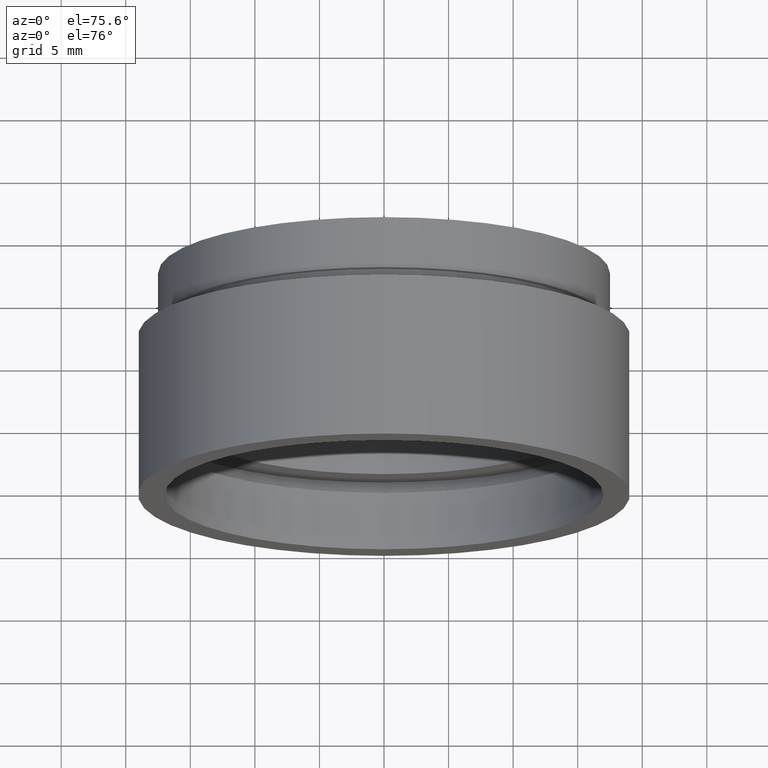
[diagram: clean part render]
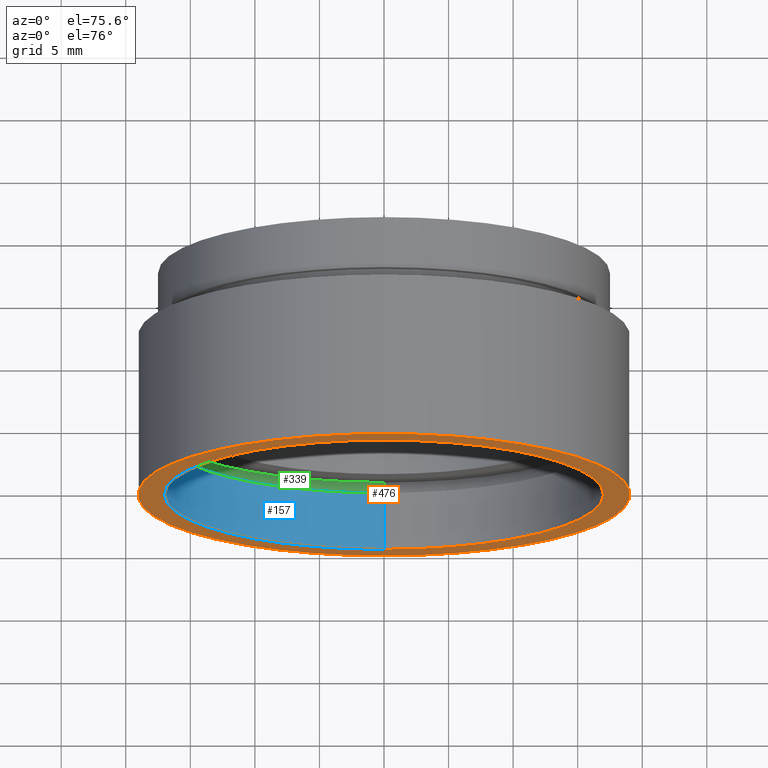
[diagram: same view with three faces highlighted in distinct colors, each labeled with its STEP entity id]
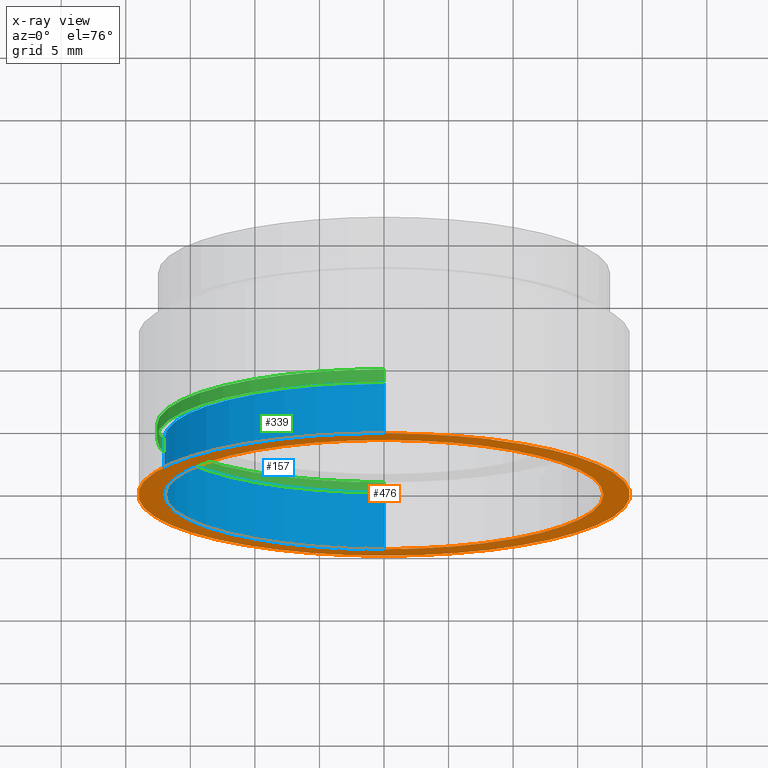
[diagram: x-ray of the same camera — body ghosted, the three highlighted faces saturated]
A machine part, auxiliary view with three faces highlighted in distinct colors.
The next image is the same camera in x-ray (body ghosted, the three faces saturated) — at least one of them is partly hidden behind the body in this view.
Their STEP definitions:

[orange] entity #476 — the highlighted planar face has unit normal (-0, 1, 0).
#2 = VERTEX_POINT ( 'NONE', #510 ) ;
#12 = CARTESIAN_POINT ( 'NONE',  ( 0.0000000000000000000, -2.775557561562891400E-014, 0.0000000000000000000 ) ) ;
#18 = DIRECTION ( 'NONE',  ( -0.0000000000000000000, 1.000000000000000000, -0.0000000000000000000 ) ) ;
#24 = AXIS2_PLACEMENT_3D ( 'NONE', #12, #18, #352 ) ;
#65 = DIRECTION ( 'NONE',  ( -0.0000000000000000000, 1.000000000000000000, -0.0000000000000000000 ) ) ;
#66 = AXIS2_PLACEMENT_3D ( 'NONE', #71, #65, #309 ) ;
#71 = CARTESIAN_POINT ( 'NONE',  ( 0.0000000000000000000, -2.775557561562891400E-014, 0.0000000000000000000 ) ) ;
#97 = EDGE_LOOP ( 'NONE', ( #342, #393 ) ) ;
#114 = CARTESIAN_POINT ( 'NONE',  ( 2.332952152375710400E-015, -2.775557561562891400E-014, -19.05000000000002200 ) ) ;
#130 = VERTEX_POINT ( 'NONE', #114 ) ;
#137 = EDGE_CURVE ( 'NONE', #130, #201, #321, .T. ) ;
#201 = VERTEX_POINT ( 'NONE', #229 ) ;
#202 = DIRECTION ( 'NONE',  ( 0.0000000000000000000, 0.0000000000000000000, 1.000000000000000000 ) ) ;
#229 = CARTESIAN_POINT ( 'NONE',  ( 0.0000000000000000000, -2.775557561562891400E-014, 19.05000000000002200 ) ) ;
#242 = VERTEX_POINT ( 'NONE', #279 ) ;
#244 = CARTESIAN_POINT ( 'NONE',  ( 0.0000000000000000000, -2.775557561562891400E-014, 0.0000000000000000000 ) ) ;
#266 = CIRCLE ( 'NONE', #24, 19.05000000000002200 ) ;
#279 = CARTESIAN_POINT ( 'NONE',  ( 0.0000000000000000000, -2.775557561562891400E-014, 17.00000000000002100 ) ) ;
#288 = DIRECTION ( 'NONE',  ( 0.0000000000000000000, 0.0000000000000000000, 1.000000000000000000 ) ) ;
#298 = EDGE_CURVE ( 'NONE', #2, #242, #512, .T. ) ;
#309 = DIRECTION ( 'NONE',  ( 0.0000000000000000000, 0.0000000000000000000, 1.000000000000000000 ) ) ;
#321 = CIRCLE ( 'NONE', #66, 19.05000000000002200 ) ;
#342 = ORIENTED_EDGE ( 'NONE', *, *, #558, .F. ) ;
#345 = CARTESIAN_POINT ( 'NONE',  ( 0.0000000000000000000, -2.775557561562891400E-014, 0.0000000000000000000 ) ) ;
#352 = DIRECTION ( 'NONE',  ( 0.0000000000000000000, 0.0000000000000000000, 1.000000000000000000 ) ) ;
#373 = CIRCLE ( 'NONE', #417, 17.00000000000002100 ) ;
#393 = ORIENTED_EDGE ( 'NONE', *, *, #137, .F. ) ;
#399 = FACE_OUTER_BOUND ( 'NONE', #97, .T. ) ;
#417 = AXIS2_PLACEMENT_3D ( 'NONE', #345, #574, #202 ) ;
#427 = EDGE_LOOP ( 'NONE', ( #586, #524 ) ) ;
#468 = AXIS2_PLACEMENT_3D ( 'NONE', #480, #527, #577 ) ;
#472 = DIRECTION ( 'NONE',  ( -0.0000000000000000000, 1.000000000000000000, -0.0000000000000000000 ) ) ;
#474 = EDGE_CURVE ( 'NONE', #242, #2, #373, .T. ) ;
#476 = ADVANCED_FACE ( 'NONE', ( #399, #519 ), #520, .F. ) ;
#480 = CARTESIAN_POINT ( 'NONE',  ( 17.00000000000002100, -1.493598162583808000E-014, 0.0000000000000000000 ) ) ;
#505 = AXIS2_PLACEMENT_3D ( 'NONE', #244, #472, #288 ) ;
#510 = CARTESIAN_POINT ( 'NONE',  ( 2.081899558550503000E-015, -2.775557561562891400E-014, -17.00000000000002100 ) ) ;
#512 = CIRCLE ( 'NONE', #505, 17.00000000000002100 ) ;
#519 = FACE_BOUND ( 'NONE', #427, .T. ) ;
#520 = PLANE ( 'NONE',  #468 ) ;
#524 = ORIENTED_EDGE ( 'NONE', *, *, #298, .T. ) ;
#527 = DIRECTION ( 'NONE',  ( -0.0000000000000000000, 1.000000000000000000, 0.0000000000000000000 ) ) ;
#558 = EDGE_CURVE ( 'NONE', #201, #130, #266, .T. ) ;
#574 = DIRECTION ( 'NONE',  ( -0.0000000000000000000, 1.000000000000000000, -0.0000000000000000000 ) ) ;
#577 = DIRECTION ( 'NONE',  ( 0.0000000000000000000, 0.0000000000000000000, 1.000000000000000000 ) ) ;
#586 = ORIENTED_EDGE ( 'NONE', *, *, #474, .T. ) ;

[blue] entity #157 — the highlighted cylindrical surface (partial cylindrical patch) has radius 17 mm, axis along (-0, 1, -0).
#2 = VERTEX_POINT ( 'NONE', #510 ) ;
#61 = CARTESIAN_POINT ( 'NONE',  ( 2.081899558550503400E-015, 4.499999999999976000, -17.00000000000002500 ) ) ;
#72 = DIRECTION ( 'NONE',  ( -0.0000000000000000000, 1.000000000000000000, -0.0000000000000000000 ) ) ;
#85 = ORIENTED_EDGE ( 'NONE', *, *, #298, .F. ) ;
#101 = VERTEX_POINT ( 'NONE', #542 ) ;
#103 = CARTESIAN_POINT ( 'NONE',  ( 0.0000000000000000000, 4.499999999999976000, 0.0000000000000000000 ) ) ;
#111 = ORIENTED_EDGE ( 'NONE', *, *, #368, .T. ) ;
#157 = ADVANCED_FACE ( 'NONE', ( #619 ), #582, .F. ) ;
#184 = CARTESIAN_POINT ( 'NONE',  ( 0.0000000000000000000, 161.3761669434274500, 17.00000000000002100 ) ) ;
#193 = ORIENTED_EDGE ( 'NONE', *, *, #206, .T. ) ;
#206 = EDGE_CURVE ( 'NONE', #2, #439, #458, .T. ) ;
#218 = ORIENTED_EDGE ( 'NONE', *, *, #219, .F. ) ;
#219 = EDGE_CURVE ( 'NONE', #242, #101, #360, .T. ) ;
#224 = AXIS2_PLACEMENT_3D ( 'NONE', #103, #620, #523 ) ;
#242 = VERTEX_POINT ( 'NONE', #279 ) ;
#244 = CARTESIAN_POINT ( 'NONE',  ( 0.0000000000000000000, -2.775557561562891400E-014, 0.0000000000000000000 ) ) ;
#261 = CARTESIAN_POINT ( 'NONE',  ( 0.0000000000000000000, 161.3761669434274500, 0.0000000000000000000 ) ) ;
#279 = CARTESIAN_POINT ( 'NONE',  ( 0.0000000000000000000, -2.775557561562891400E-014, 17.00000000000002100 ) ) ;
#288 = DIRECTION ( 'NONE',  ( 0.0000000000000000000, 0.0000000000000000000, 1.000000000000000000 ) ) ;
#291 = VECTOR ( 'NONE', #469, 1000.000000000000000 ) ;
#298 = EDGE_CURVE ( 'NONE', #2, #242, #512, .T. ) ;
#329 = CARTESIAN_POINT ( 'NONE',  ( 2.081899558550503000E-015, 161.3761669434274500, -17.00000000000002100 ) ) ;
#343 = CIRCLE ( 'NONE', #224, 17.00000000000002500 ) ;
#360 = LINE ( 'NONE', #184, #521 ) ;
#368 = EDGE_CURVE ( 'NONE', #439, #101, #343, .T. ) ;
#400 = DIRECTION ( 'NONE',  ( 0.0000000000000000000, 0.0000000000000000000, 1.000000000000000000 ) ) ;
#411 = EDGE_LOOP ( 'NONE', ( #85, #193, #111, #218 ) ) ;
#439 = VERTEX_POINT ( 'NONE', #61 ) ;
#458 = LINE ( 'NONE', #329, #291 ) ;
#462 = DIRECTION ( 'NONE',  ( -0.0000000000000000000, 1.000000000000000000, -0.0000000000000000000 ) ) ;
#469 = DIRECTION ( 'NONE',  ( -0.0000000000000000000, 1.000000000000000000, -0.0000000000000000000 ) ) ;
#472 = DIRECTION ( 'NONE',  ( -0.0000000000000000000, 1.000000000000000000, -0.0000000000000000000 ) ) ;
#505 = AXIS2_PLACEMENT_3D ( 'NONE', #244, #472, #288 ) ;
#510 = CARTESIAN_POINT ( 'NONE',  ( 2.081899558550503000E-015, -2.775557561562891400E-014, -17.00000000000002100 ) ) ;
#512 = CIRCLE ( 'NONE', #505, 17.00000000000002100 ) ;
#521 = VECTOR ( 'NONE', #462, 1000.000000000000000 ) ;
#523 = DIRECTION ( 'NONE',  ( 0.0000000000000000000, 0.0000000000000000000, 1.000000000000000000 ) ) ;
#534 = AXIS2_PLACEMENT_3D ( 'NONE', #261, #72, #400 ) ;
#542 = CARTESIAN_POINT ( 'NONE',  ( 0.0000000000000000000, 4.499999999999976000, 17.00000000000002500 ) ) ;
#582 = CYLINDRICAL_SURFACE ( 'NONE', #534, 17.00000000000002100 ) ;
#619 = FACE_OUTER_BOUND ( 'NONE', #411, .T. ) ;
#620 = DIRECTION ( 'NONE',  ( -0.0000000000000000000, 1.000000000000000000, -0.0000000000000000000 ) ) ;

[green] entity #339 — the highlighted cylindrical surface (partial cylindrical patch) has radius 17.6 mm, axis along (-0, 1, -0).
#8 = CARTESIAN_POINT ( 'NONE',  ( 0.0000000000000000000, 4.499999999999976000, 0.0000000000000000000 ) ) ;
#26 = EDGE_LOOP ( 'NONE', ( #141, #231, #495, #57 ) ) ;
#57 = ORIENTED_EDGE ( 'NONE', *, *, #502, .F. ) ;
#77 = LINE ( 'NONE', #531, #84 ) ;
#83 = AXIS2_PLACEMENT_3D ( 'NONE', #299, #105, #246 ) ;
#84 = VECTOR ( 'NONE', #196, 1000.000000000000000 ) ;
#87 = EDGE_CURVE ( 'NONE', #381, #556, #273, .T. ) ;
#105 = DIRECTION ( 'NONE',  ( -0.0000000000000000000, 1.000000000000000000, -0.0000000000000000000 ) ) ;
#107 = VERTEX_POINT ( 'NONE', #119 ) ;
#108 = CARTESIAN_POINT ( 'NONE',  ( 2.155378366499344400E-015, 5.499999999999976900, -17.60000000000002300 ) ) ;
#119 = CARTESIAN_POINT ( 'NONE',  ( 0.0000000000000000000, 4.499999999999976000, 17.60000000000002300 ) ) ;
#141 = ORIENTED_EDGE ( 'NONE', *, *, #576, .F. ) ;
#172 = DIRECTION ( 'NONE',  ( -0.0000000000000000000, 1.000000000000000000, -0.0000000000000000000 ) ) ;
#183 = EDGE_CURVE ( 'NONE', #365, #381, #557, .T. ) ;
#196 = DIRECTION ( 'NONE',  ( -0.0000000000000000000, 1.000000000000000000, -0.0000000000000000000 ) ) ;
#212 = CARTESIAN_POINT ( 'NONE',  ( 0.0000000000000000000, 5.499999999999976900, 17.60000000000002300 ) ) ;
#231 = ORIENTED_EDGE ( 'NONE', *, *, #183, .T. ) ;
#240 = CARTESIAN_POINT ( 'NONE',  ( 2.155378366499344400E-015, 4.499999999999976000, -17.60000000000002300 ) ) ;
#246 = DIRECTION ( 'NONE',  ( 0.0000000000000000000, 0.0000000000000000000, 1.000000000000000000 ) ) ;
#273 = CIRCLE ( 'NONE', #494, 17.60000000000002300 ) ;
#299 = CARTESIAN_POINT ( 'NONE',  ( 0.0000000000000000000, 161.3761669434274500, 0.0000000000000000000 ) ) ;
#303 = DIRECTION ( 'NONE',  ( -0.0000000000000000000, 1.000000000000000000, -0.0000000000000000000 ) ) ;
#307 = DIRECTION ( 'NONE',  ( -0.0000000000000000000, 1.000000000000000000, -0.0000000000000000000 ) ) ;
#318 = CIRCLE ( 'NONE', #437, 17.60000000000002300 ) ;
#339 = ADVANCED_FACE ( 'NONE', ( #374 ), #533, .F. ) ;
#356 = DIRECTION ( 'NONE',  ( 0.0000000000000000000, 0.0000000000000000000, 1.000000000000000000 ) ) ;
#359 = CARTESIAN_POINT ( 'NONE',  ( 2.155378366499344400E-015, 161.3761669434274500, -17.60000000000002300 ) ) ;
#365 = VERTEX_POINT ( 'NONE', #240 ) ;
#374 = FACE_OUTER_BOUND ( 'NONE', #26, .T. ) ;
#381 = VERTEX_POINT ( 'NONE', #108 ) ;
#391 = DIRECTION ( 'NONE',  ( 0.0000000000000000000, 0.0000000000000000000, 1.000000000000000000 ) ) ;
#433 = CARTESIAN_POINT ( 'NONE',  ( 0.0000000000000000000, 5.499999999999976900, 0.0000000000000000000 ) ) ;
#437 = AXIS2_PLACEMENT_3D ( 'NONE', #8, #307, #391 ) ;
#494 = AXIS2_PLACEMENT_3D ( 'NONE', #433, #303, #356 ) ;
#495 = ORIENTED_EDGE ( 'NONE', *, *, #87, .T. ) ;
#502 = EDGE_CURVE ( 'NONE', #107, #556, #77, .T. ) ;
#531 = CARTESIAN_POINT ( 'NONE',  ( 0.0000000000000000000, 161.3761669434274500, 17.60000000000002300 ) ) ;
#533 = CYLINDRICAL_SURFACE ( 'NONE', #83, 17.60000000000002300 ) ;
#556 = VERTEX_POINT ( 'NONE', #212 ) ;
#557 = LINE ( 'NONE', #359, #623 ) ;
#576 = EDGE_CURVE ( 'NONE', #365, #107, #318, .T. ) ;
#623 = VECTOR ( 'NONE', #172, 1000.000000000000000 ) ;